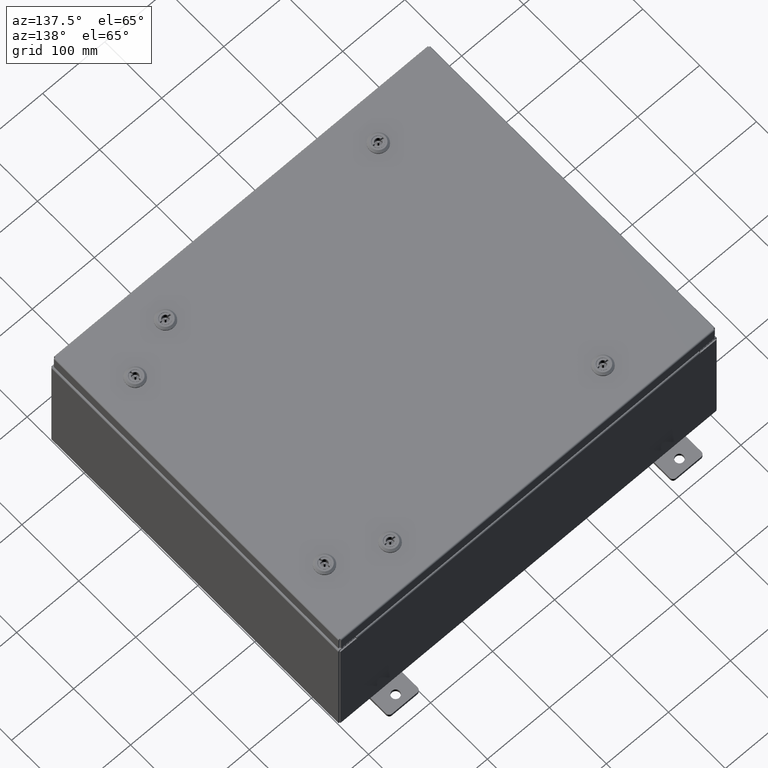
[diagram: clean part render]
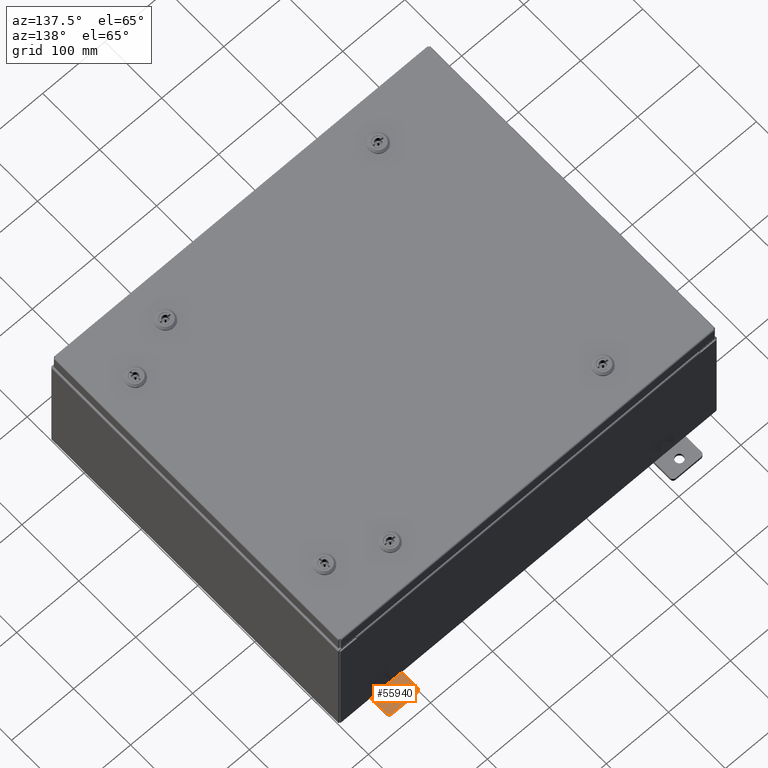
[diagram: same view with one face highlighted and labeled with its STEP entity id]
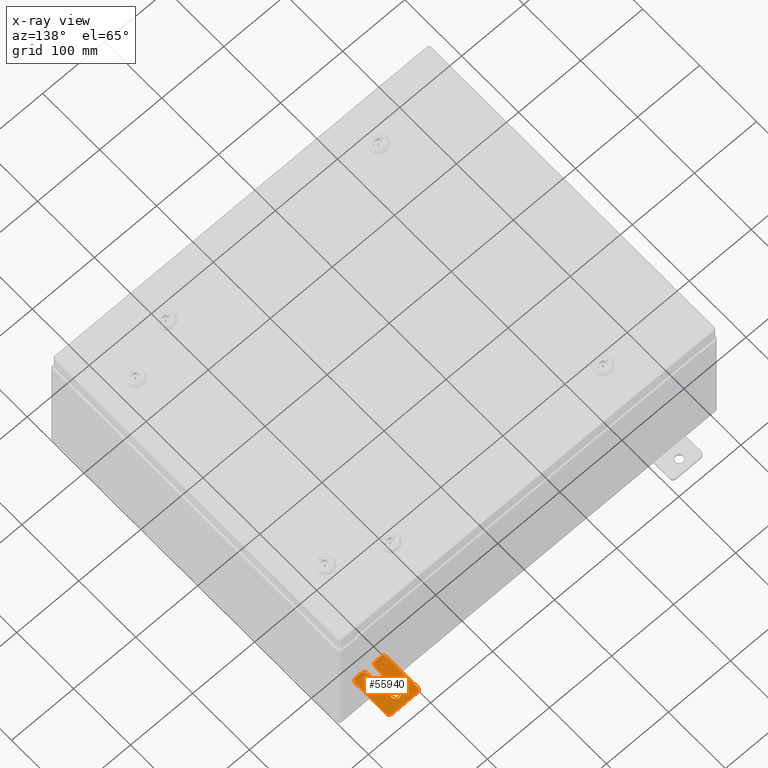
[diagram: x-ray of the same camera — body ghosted, the highlighted face saturated]
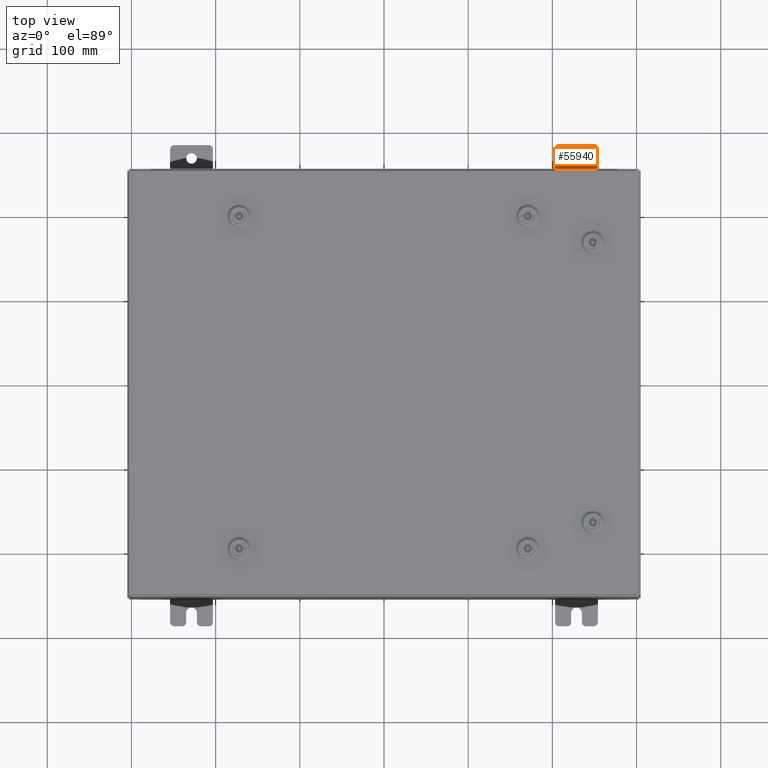
[diagram: same view with one face highlighted and labeled with its STEP entity id]
A machine part, auxiliary view. The second image highlights one B-rep face of the part: STEP entity #55940.
The next image is the same camera in x-ray: the body ghosted, the highlighted face saturated — about 2% of this face is hidden behind the body in this view.
A second angle (top view) of the same face is appended — the face is thin or edge-on in the first view.
In plain terms, the highlighted planar face has unit normal (0, 0, 1).
Its self-contained STEP definition (entity closure, byte-faithful):
#217 = CARTESIAN_POINT ( 'NONE',  ( 0.0000000000000000000, -1.250000000000005600, -1.000000000000006200 ) ) ;
#298 = CARTESIAN_POINT ( 'NONE',  ( 0.0000000000000000000, 1.249999999999994200, -1.000000000000010400 ) ) ;
#821 = ORIENTED_EDGE ( 'NONE', *, *, #15360, .T. ) ;
#1397 = CARTESIAN_POINT ( 'NONE',  ( 0.0000000000000000000, 1.249999999999994700, -0.8100000000000092700 ) ) ;
#1732 = CARTESIAN_POINT ( 'NONE',  ( 4.780733988912460100E-016, -0.6249999999999993300, 5.858939755051854500E-017 ) ) ;
#2876 = DIRECTION ( 'NONE',  ( -5.163192708025533800E-017, 0.0000000000000000000, -1.000000000000000000 ) ) ;
#2886 = AXIS2_PLACEMENT_3D ( 'NONE', #8435, #42696, #13379 ) ;
#3032 = VECTOR ( 'NONE', #29633, 39.37007874015748100 ) ;
#3125 = AXIS2_PLACEMENT_3D ( 'NONE', #60909, #29465, #14879 ) ;
#3213 = ORIENTED_EDGE ( 'NONE', *, *, #37487, .T. ) ;
#3546 = VECTOR ( 'NONE', #25866, 39.37007874015748100 ) ;
#4075 = ORIENTED_EDGE ( 'NONE', *, *, #16215, .T. ) ;
#5157 = ORIENTED_EDGE ( 'NONE', *, *, #6772, .T. ) ;
#5268 = DIRECTION ( 'NONE',  ( 0.0000000000000000000, 1.639108796198553600E-015, 1.000000000000000000 ) ) ;
#5323 = CIRCLE ( 'NONE', #58675, 0.1900000000000011100 ) ;
#5880 = CARTESIAN_POINT ( 'NONE',  ( 0.0000000000000000000, -1.250000000000004700, -0.4400000000000002200 ) ) ;
#5930 = CARTESIAN_POINT ( 'NONE',  ( 4.780733988912460100E-016, -0.6249999999999993300, -0.2499999999999993900 ) ) ;
#6442 = VERTEX_POINT ( 'NONE', #53562 ) ;
#6716 = DIRECTION ( 'NONE',  ( -6.523827964459551700E-016, -1.000000000000000000, 0.0000000000000000000 ) ) ;
#6772 = EDGE_CURVE ( 'NONE', #59429, #8885, #13575, .T. ) ;
#6874 = PLANE ( 'NONE',  #13119 ) ;
#7000 = DIRECTION ( 'NONE',  ( 1.000000000000000000, 0.0000000000000000000, -0.0000000000000000000 ) ) ;
#7788 = EDGE_CURVE ( 'NONE', #11725, #49153, #28085, .T. ) ;
#8430 = AXIS2_PLACEMENT_3D ( 'NONE', #61570, #32227, #2876 ) ;
#8435 = CARTESIAN_POINT ( 'NONE',  ( 4.039428427013647300E-016, 0.6249999999999992200, -9.783840404509077400E-018 ) ) ;
#8663 = CIRCLE ( 'NONE', #21315, 0.2499999999999999200 ) ;
#8885 = VERTEX_POINT ( 'NONE', #5880 ) ;
#8899 = AXIS2_PLACEMENT_3D ( 'NONE', #36332, #7000, #41252 ) ;
#9468 = LINE ( 'NONE', #33447, #10137 ) ;
#9812 = VECTOR ( 'NONE', #26330, 39.37007874015748100 ) ;
#10137 = VECTOR ( 'NONE', #43092, 39.37007874015748100 ) ;
#10501 = EDGE_LOOP ( 'NONE', ( #19358, #15901 ) ) ;
#10661 = AXIS2_PLACEMENT_3D ( 'NONE', #57039, #27734, #61978 ) ;
#11725 = VERTEX_POINT ( 'NONE', #60173 ) ;
#12721 = LINE ( 'NONE', #5930, #50275 ) ;
#13119 = AXIS2_PLACEMENT_3D ( 'NONE', #16737, #50977, #21655 ) ;
#13309 = CARTESIAN_POINT ( 'NONE',  ( 0.0000000000000000000, -1.060000000000001600, 0.8099999999999978300 ) ) ;
#13379 = DIRECTION ( 'NONE',  ( -5.163192708025533800E-017, 0.0000000000000000000, -1.000000000000000000 ) ) ;
#13575 = CIRCLE ( 'NONE', #3125, 0.1900000000000011100 ) ;
#14648 = FACE_BOUND ( 'NONE', #10501, .T. ) ;
#14788 = AXIS2_PLACEMENT_3D ( 'NONE', #13309, #47533, #18243 ) ;
#14879 = DIRECTION ( 'NONE',  ( 0.0000000000000000000, 0.0000000000000000000, -1.000000000000000000 ) ) ;
#15360 = EDGE_CURVE ( 'NONE', #34608, #15788, #42143, .T. ) ;
#15772 = EDGE_CURVE ( 'NONE', #62625, #34608, #5323, .T. ) ;
#15788 = VERTEX_POINT ( 'NONE', #41996 ) ;
#15901 = ORIENTED_EDGE ( 'NONE', *, *, #39571, .F. ) ;
#16215 = EDGE_CURVE ( 'NONE', #55443, #59830, #58167, .T. ) ;
#16365 = CARTESIAN_POINT ( 'NONE',  ( 0.0000000000000000000, -0.6249999999999992200, 0.2500000000000005000 ) ) ;
#16575 = VECTOR ( 'NONE', #5268, 39.37007874015748100 ) ;
#16737 = CARTESIAN_POINT ( 'NONE',  ( 0.0000000000000000000, 0.0000000000000000000, 0.0000000000000000000 ) ) ;
#17413 = VERTEX_POINT ( 'NONE', #21758 ) ;
#17680 = CIRCLE ( 'NONE', #10661, 0.1900000000000011100 ) ;
#18243 = DIRECTION ( 'NONE',  ( 0.0000000000000000000, 0.0000000000000000000, -1.000000000000000000 ) ) ;
#19358 = ORIENTED_EDGE ( 'NONE', *, *, #50609, .F. ) ;
#19429 = EDGE_CURVE ( 'NONE', #56369, #17413, #28051, .T. ) ;
#20469 = ORIENTED_EDGE ( 'NONE', *, *, #63077, .T. ) ;
#21022 = AXIS2_PLACEMENT_3D ( 'NONE', #51583, #22275, #56482 ) ;
#21079 = ORIENTED_EDGE ( 'NONE', *, *, #51565, .T. ) ;
#21128 = CIRCLE ( 'NONE', #8899, 0.1900000000000011100 ) ;
#21315 = AXIS2_PLACEMENT_3D ( 'NONE', #1732, #36044, #6716 ) ;
#21623 = CARTESIAN_POINT ( 'NONE',  ( 0.0000000000000000000, 1.249999999999997600, 0.9999999999999951200 ) ) ;
#21655 = DIRECTION ( 'NONE',  ( -0.0000000000000000000, 0.0000000000000000000, -1.000000000000000000 ) ) ;
#21758 = CARTESIAN_POINT ( 'NONE',  ( 0.0000000000000000000, 1.249999999999997300, 0.8099999999999935000 ) ) ;
#22275 = DIRECTION ( 'NONE',  ( 1.000000000000000000, 0.0000000000000000000, -0.0000000000000000000 ) ) ;
#22278 = CARTESIAN_POINT ( 'NONE',  ( 3.910348609313009100E-016, 0.6249999999999992200, -0.2499999999999999200 ) ) ;
#22536 = CARTESIAN_POINT ( 'NONE',  ( 0.0000000000000000000, -1.060000000000004100, -0.8100000000000050500 ) ) ;
#22899 = LINE ( 'NONE', #21623, #9812 ) ;
#25349 = CIRCLE ( 'NONE', #14788, 0.1900000000000011100 ) ;
#25411 = CIRCLE ( 'NONE', #2886, 0.2499999999999999200 ) ;
#25866 = DIRECTION ( 'NONE',  ( 0.0000000000000000000, -1.639108796198553600E-015, -1.000000000000000000 ) ) ;
#26330 = DIRECTION ( 'NONE',  ( 0.0000000000000000000, -1.000000000000000000, 1.639108796198558100E-015 ) ) ;
#27445 = DIRECTION ( 'NONE',  ( 0.0000000000000000000, 0.0000000000000000000, -1.000000000000000000 ) ) ;
#27717 = FACE_OUTER_BOUND ( 'NONE', #57216, .T. ) ;
#27734 = DIRECTION ( 'NONE',  ( 1.000000000000000000, 0.0000000000000000000, -0.0000000000000000000 ) ) ;
#27816 = EDGE_CURVE ( 'NONE', #17413, #53242, #17680, .T. ) ;
#28051 = LINE ( 'NONE', #298, #16575 ) ;
#28085 = LINE ( 'NONE', #55147, #3546 ) ;
#29465 = DIRECTION ( 'NONE',  ( 1.000000000000000000, 0.0000000000000000000, -0.0000000000000000000 ) ) ;
#29633 = DIRECTION ( 'NONE',  ( 0.0000000000000000000, 1.000000000000000000, -1.639108796198558100E-015 ) ) ;
#30139 = CIRCLE ( 'NONE', #8430, 0.2499999999999999200 ) ;
#32227 = DIRECTION ( 'NONE',  ( 1.000000000000000000, -0.0000000000000000000, -5.163192708025532000E-017 ) ) ;
#33323 = ORIENTED_EDGE ( 'NONE', *, *, #47873, .T. ) ;
#33447 = CARTESIAN_POINT ( 'NONE',  ( 0.0000000000000000000, -1.250000000000002200, 0.9999999999999992200 ) ) ;
#33897 = EDGE_CURVE ( 'NONE', #47842, #59429, #12721, .T. ) ;
#34608 = VERTEX_POINT ( 'NONE', #58949 ) ;
#35199 = ORIENTED_EDGE ( 'NONE', *, *, #57389, .T. ) ;
#35685 = VERTEX_POINT ( 'NONE', #40838 ) ;
#36044 = DIRECTION ( 'NONE',  ( -1.000000000000000000, 6.523827964459549700E-016, 5.163192708025532000E-017 ) ) ;
#36141 = CARTESIAN_POINT ( 'NONE',  ( 1.928684683526964400E-016, -1.060000000000003400, -0.2499999999999994400 ) ) ;
#36320 = ORIENTED_EDGE ( 'NONE', *, *, #33897, .T. ) ;
#36332 = CARTESIAN_POINT ( 'NONE',  ( 0.0000000000000000000, 1.059999999999993600, -0.8100000000000089400 ) ) ;
#37487 = EDGE_CURVE ( 'NONE', #59830, #47842, #8663, .T. ) ;
#39571 = EDGE_CURVE ( 'NONE', #6442, #53057, #25411, .T. ) ;
#40219 = CARTESIAN_POINT ( 'NONE',  ( 6.829619984160658000E-017, -1.250000000000003800, 0.2500000000000005000 ) ) ;
#40426 = DIRECTION ( 'NONE',  ( 6.556435184794182400E-016, 1.000000000000000000, 0.0000000000000000000 ) ) ;
#40838 = CARTESIAN_POINT ( 'NONE',  ( 0.0000000000000000000, -1.060000000000001200, 0.9999999999999988900 ) ) ;
#41252 = DIRECTION ( 'NONE',  ( 0.0000000000000000000, 0.0000000000000000000, -1.000000000000000000 ) ) ;
#41996 = CARTESIAN_POINT ( 'NONE',  ( 0.0000000000000000000, 1.059999999999993400, -1.000000000000010000 ) ) ;
#42143 = LINE ( 'NONE', #217, #3032 ) ;
#42564 = CARTESIAN_POINT ( 'NONE',  ( 0.0000000000000000000, 1.059999999999996500, 0.9999999999999953400 ) ) ;
#42696 = DIRECTION ( 'NONE',  ( 1.000000000000000000, -0.0000000000000000000, -5.163192708025532000E-017 ) ) ;
#43092 = DIRECTION ( 'NONE',  ( 0.0000000000000000000, -1.639108796198553600E-015, -1.000000000000000000 ) ) ;
#43672 = CARTESIAN_POINT ( 'NONE',  ( 0.0000000000000000000, -1.250000000000005300, -0.8100000000000047200 ) ) ;
#44760 = ORIENTED_EDGE ( 'NONE', *, *, #19429, .T. ) ;
#44953 = ORIENTED_EDGE ( 'NONE', *, *, #7788, .T. ) ;
#45141 = VECTOR ( 'NONE', #40426, 39.37007874015748100 ) ;
#46185 = ORIENTED_EDGE ( 'NONE', *, *, #27816, .T. ) ;
#46519 = CIRCLE ( 'NONE', #21022, 0.1900000000000011400 ) ;
#47533 = DIRECTION ( 'NONE',  ( 1.000000000000000000, 0.0000000000000000000, -0.0000000000000000000 ) ) ;
#47842 = VERTEX_POINT ( 'NONE', #55575 ) ;
#47873 = EDGE_CURVE ( 'NONE', #15788, #56369, #21128, .T. ) ;
#49153 = VERTEX_POINT ( 'NONE', #52496 ) ;
#50039 = DIRECTION ( 'NONE',  ( -6.556435184794182400E-016, -1.000000000000000000, -1.639108796198545600E-016 ) ) ;
#50275 = VECTOR ( 'NONE', #50039, 39.37007874015748100 ) ;
#50609 = EDGE_CURVE ( 'NONE', #53057, #6442, #30139, .T. ) ;
#50977 = DIRECTION ( 'NONE',  ( 1.000000000000000000, 0.0000000000000000000, -0.0000000000000000000 ) ) ;
#51565 = EDGE_CURVE ( 'NONE', #8885, #62625, #9468, .T. ) ;
#51583 = CARTESIAN_POINT ( 'NONE',  ( 0.0000000000000000000, -1.060000000000002100, 0.4400000000000016700 ) ) ;
#52496 = CARTESIAN_POINT ( 'NONE',  ( 0.0000000000000000000, -1.250000000000003100, 0.4400000000000020000 ) ) ;
#53057 = VERTEX_POINT ( 'NONE', #22278 ) ;
#53242 = VERTEX_POINT ( 'NONE', #42564 ) ;
#53562 = CARTESIAN_POINT ( 'NONE',  ( 4.168508244714285900E-016, 0.6249999999999992200, 0.2499999999999999200 ) ) ;
#55147 = CARTESIAN_POINT ( 'NONE',  ( 0.0000000000000000000, -1.250000000000002200, 0.9999999999999992200 ) ) ;
#55443 = VERTEX_POINT ( 'NONE', #59674 ) ;
#55575 = CARTESIAN_POINT ( 'NONE',  ( 4.780733988912460100E-016, -0.6249999999999993300, -0.2499999999999998600 ) ) ;
#55940 = ADVANCED_FACE ( 'NONE', ( #14648, #27717 ), #6874, .T. ) ;
#56369 = VERTEX_POINT ( 'NONE', #1397 ) ;
#56482 = DIRECTION ( 'NONE',  ( 0.0000000000000000000, 0.0000000000000000000, -1.000000000000000000 ) ) ;
#56734 = DIRECTION ( 'NONE',  ( 1.000000000000000000, 0.0000000000000000000, -0.0000000000000000000 ) ) ;
#57039 = CARTESIAN_POINT ( 'NONE',  ( 0.0000000000000000000, 1.059999999999996300, 0.8099999999999938400 ) ) ;
#57216 = EDGE_LOOP ( 'NONE', ( #58161, #35199, #44953, #20469, #4075, #3213, #36320, #5157, #21079, #57566, #821, #33323, #44760, #46185 ) ) ;
#57389 = EDGE_CURVE ( 'NONE', #35685, #11725, #25349, .T. ) ;
#57566 = ORIENTED_EDGE ( 'NONE', *, *, #15772, .T. ) ;
#58161 = ORIENTED_EDGE ( 'NONE', *, *, #61855, .T. ) ;
#58167 = LINE ( 'NONE', #40219, #45141 ) ;
#58675 = AXIS2_PLACEMENT_3D ( 'NONE', #22536, #56734, #27445 ) ;
#58949 = CARTESIAN_POINT ( 'NONE',  ( 0.0000000000000000000, -1.060000000000004500, -1.000000000000006400 ) ) ;
#59429 = VERTEX_POINT ( 'NONE', #36141 ) ;
#59674 = CARTESIAN_POINT ( 'NONE',  ( 1.928684683526972300E-016, -1.060000000000002100, 0.2500000000000005000 ) ) ;
#59830 = VERTEX_POINT ( 'NONE', #16365 ) ;
#60173 = CARTESIAN_POINT ( 'NONE',  ( 0.0000000000000000000, -1.250000000000002400, 0.8099999999999980500 ) ) ;
#60909 = CARTESIAN_POINT ( 'NONE',  ( 0.0000000000000000000, -1.060000000000003400, -0.4400000000000005000 ) ) ;
#61570 = CARTESIAN_POINT ( 'NONE',  ( 4.039428427013647300E-016, 0.6249999999999992200, -9.783840404509077400E-018 ) ) ;
#61855 = EDGE_CURVE ( 'NONE', #53242, #35685, #22899, .T. ) ;
#61978 = DIRECTION ( 'NONE',  ( 0.0000000000000000000, 0.0000000000000000000, -1.000000000000000000 ) ) ;
#62625 = VERTEX_POINT ( 'NONE', #43672 ) ;
#63077 = EDGE_CURVE ( 'NONE', #49153, #55443, #46519, .T. ) ;